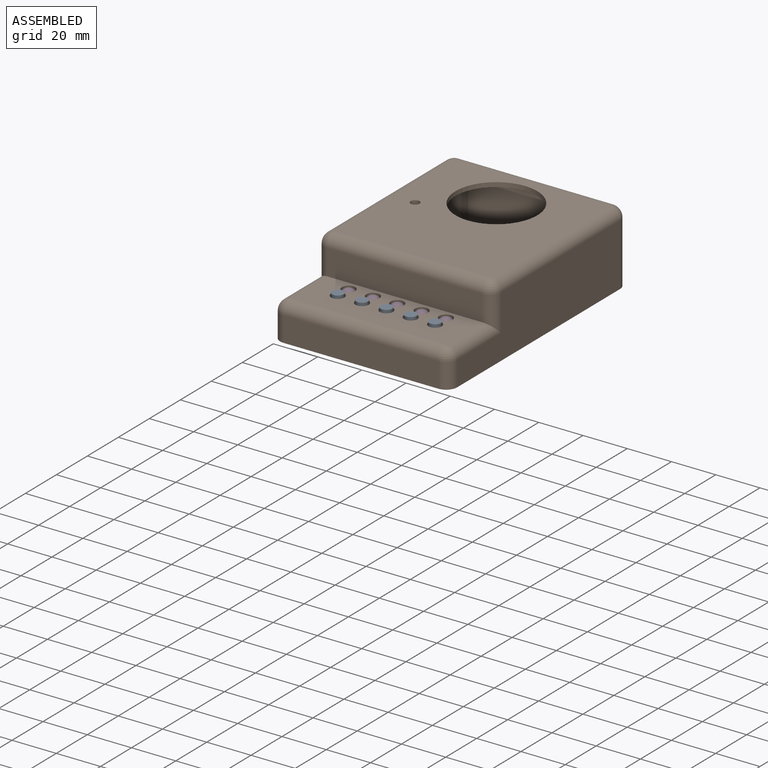
[diagram: assembled view]
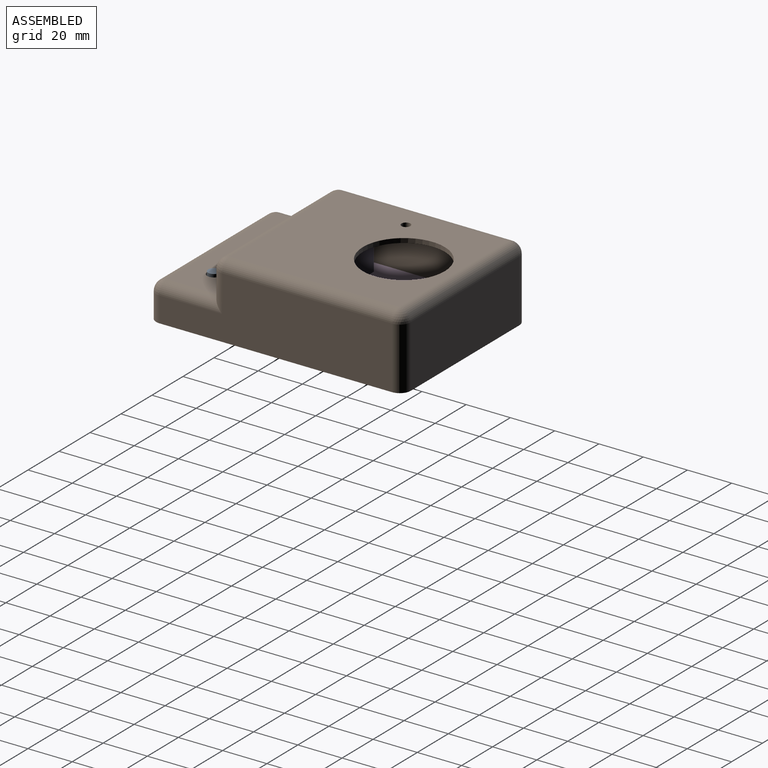
[diagram: assembled view, second angle]
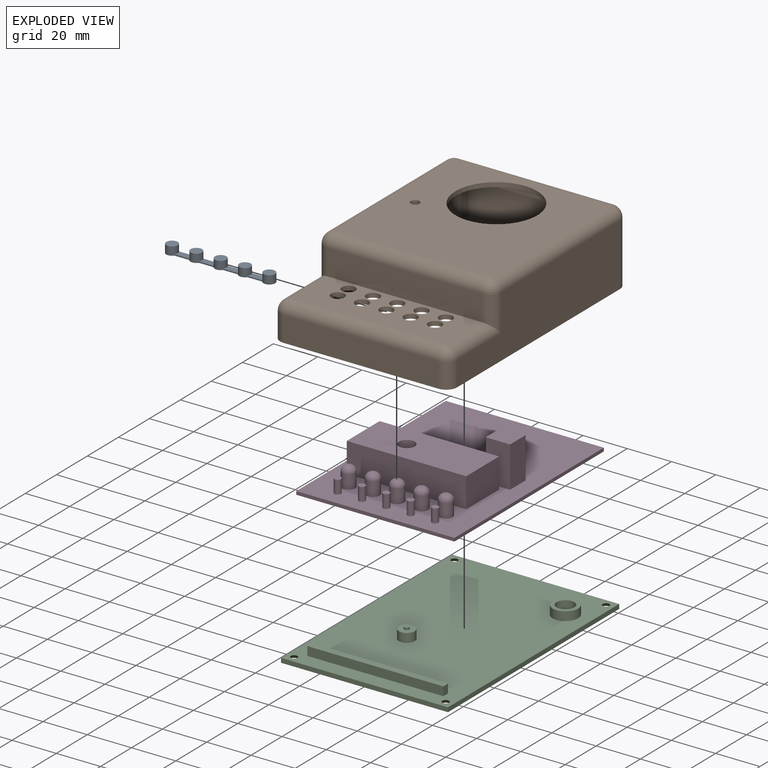
[diagram: exploded view]
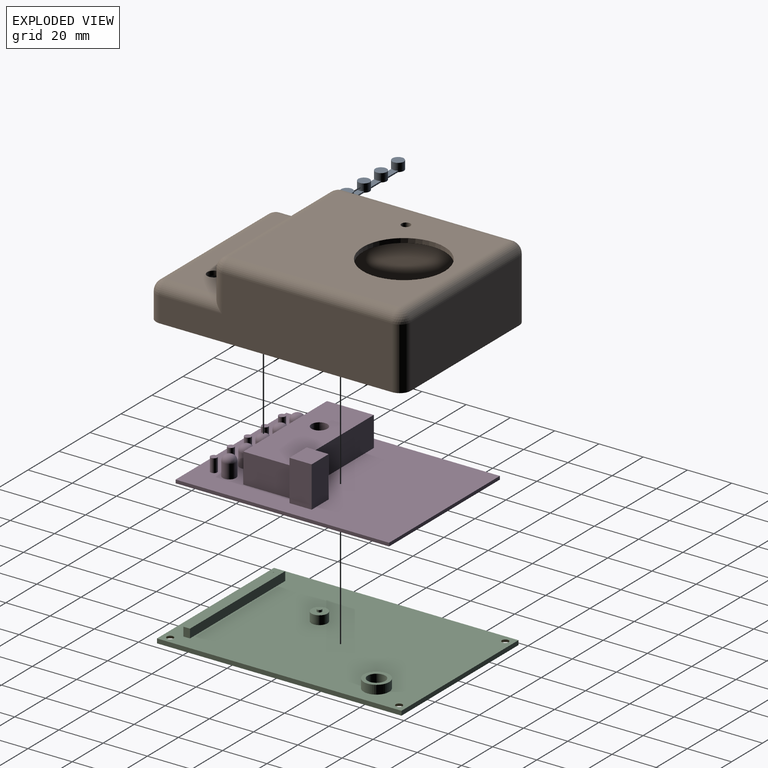
[diagram: exploded view, second angle]
ASSEMBLY  parts=4 mates=4
PART A: 23 faces, bbox 49.2x5.2x3.8 mm
  f0: plane 6.75x3mm, normal (0,0,1), area 18.3mm2, adj f7,f8,f9,f10
  f1: plane 6.75x3mm, normal (0,0,1), area 18.3mm2, adj f5,f6,f10,f11
  f2: plane 6.75x3mm, normal (0,0,1), area 18.3mm2, adj f4,f5,f12,f13
  f3: plane 6.75x3mm, normal (0,0,1), area 18.3mm2, adj f13,f14,f15,f16
  f4: plane 6.75x0.58mm, normal (0,-1,0), area 3.9mm2, adj f2,f5,f13,f17
  f5: cylinder r=2.6mm len=5.2mm, axis (0,0,-1), area 58mm2, adj f1,f2,f4,f6,f11,f12,f17,f20
  f6: plane 6.75x0.58mm, normal (0,-1,0), area 3.9mm2, adj f1,f5,f10,f17
  f7: plane 6.75x0.58mm, normal (0,-1,0), area 3.9mm2, adj f0,f8,f10,f17
  f8: cylinder r=2.6mm len=5.2mm, axis (0,0,-1), area 59.9mm2, adj f0,f7,f9,f17,f22
  f9: plane 6.75x0.58mm, normal (0,1,0), area 3.9mm2, adj f0,f8,f10,f17
  f10: cylinder r=2.6mm len=5.2mm, axis (0,0,-1), area 58mm2, adj f0,f1,f6,f7,f9,f11,f17,f21
  f11: plane 6.75x0.58mm, normal (0,1,0), area 3.9mm2, adj f1,f5,f10,f17
  f12: plane 6.75x0.58mm, normal (0,1,0), area 3.9mm2, adj f2,f5,f13,f17
  f13: cylinder r=2.6mm len=5.2mm, axis (0,0,-1), area 58mm2, adj f2,f3,f4,f12,f14,f16,f17,f19
  f14: plane 6.75x0.58mm, normal (0,1,0), area 3.9mm2, adj f3,f13,f15,f17
  f15: cylinder r=2.6mm len=5.2mm, axis (0,0,-1), area 59.9mm2, adj f3,f14,f16,f17,f18
  f16: plane 6.75x0.58mm, normal (0,-1,0), area 3.9mm2, adj f3,f13,f15,f17
  f17: plane 49.2x5.2mm, normal (0,0,-1), area 179.4mm2, adj f4,f5,f6,f7,f8,f9,f10,f11
  f18: plane 5.2x5.2mm, normal (0,0,1), area 21.2mm2, adj f15
  f19: plane 5.2x5.2mm, normal (0,0,1), area 21.2mm2, adj f13
  f20: plane 5.2x5.2mm, normal (0,0,1), area 21.2mm2, adj f5
  f21: plane 5.2x5.2mm, normal (0,0,1), area 21.2mm2, adj f10
  f22: plane 5.2x5.2mm, normal (0,0,1), area 21.2mm2, adj f8
PART B: 110 faces, bbox 80x115.1x33 mm
  f0: plane 72.77x68mm, normal (0,0,-1), area 3416.2mm2, adj f21,f28,f34,f55,f56,f57,f58,f61
  f1: plane 76x9.33mm, normal (0,1,0), area 605.7mm2, adj f2,f3,f10,f38,f41,f45,f47,f101
  f2: plane 111.1x26mm, normal (-1,0,0), area 2107.3mm2, adj f1,f4,f10,f32,f33,f44,f45,f77
  f3: plane 111.1x26mm, normal (1,0,0), area 1968.3mm2, adj f1,f4,f10,f14,f26,f27,f38,f39
  f4: plane 76x26mm, normal (0,-1,0), area 1630.9mm2, adj f2,f3,f10,f26,f29,f32,f35,f79
  f5: plane 70x11.67mm, normal (0,-1,0), area 816.9mm2, adj f6,f72,f87,f95
  f6: plane 70x23.33mm, normal (0,0,1), area 1350.4mm2, adj f5,f16,f17,f18,f19,f20,f64,f65
  f7: plane 70x11.33mm, normal (0,-1,0), area 793.1mm2, adj f10,f88,f91,f92
  f8: plane 66x23.33mm, normal (0,0,-1), area 1251.6mm2, adj f9,f16,f17,f18,f19,f20,f40,f46
  f9: plane 66x11.67mm, normal (0,1,0), area 770.2mm2, adj f8,f78,f81,f84
  f10: plane 115.1x80mm, normal (0,0,-1), area 742.9mm2, adj f1,f2,f3,f4,f7,f11,f13,f15
  f11: plane 70x28mm, normal (0,1,0), area 1960mm2, adj f10,f71,f97,f99
  f12: plane 76.77x70mm, normal (0,0,1), area 4286.1mm2, adj f21,f69,f70,f71,f72,f73
  f13: plane 105.1x28mm, normal (1,0,0), area 2470.5mm2, adj f10,f70,f91,f94,f95,f99
  f14: cylinder r=7.5mm len=15mm, axis (1,0,0), area 94.2mm2, adj f3,f15,f73,f75
  f15: plane 105.1x28mm, normal (-1,0,0), area 2307.8mm2, adj f10,f14,f73,f87,f88,f89,f97
  f16: cylinder r=3mm len=6mm, axis (0,0,1), area 37.7mm2, adj f6,f8
  f17: cylinder r=3mm len=6mm, axis (0,0,1), area 37.7mm2, adj f6,f8
  f18: cylinder r=3mm len=6mm, axis (0,0,1), area 37.7mm2, adj f6,f8
  f19: cylinder r=3mm len=6mm, axis (0,0,1), area 37.7mm2, adj f6,f8
  f20: cylinder r=3mm len=6mm, axis (0,0,1), area 37.7mm2, adj f6,f8
  f21: cylinder r=18.5mm len=37mm, axis (0,0,1), area 232.5mm2, adj f0,f12,f102
  f22: plane 7.5x7.5mm, normal (0,0,-1), area 36.1mm2, adj f23,f24
  f23: cylinder r=3.75mm len=18.43mm, axis (0,0,1), area 411.4mm2, adj f22,f102,f103,f104,f105
  f24: cylinder r=1.6mm len=23.3mm, axis (0,0,1), area 234.2mm2, adj f22,f25
  f25: plane 3.2x3.2mm, normal (0,0,-1), area 8mm2, adj f24
  f26: plane 7.3x7.25mm, normal (0,0,-1), area 20.1mm2, adj f3,f4,f27,f28,f29,f108
  f27: plane 28.65x3.78mm, normal (0,-1,0), area 103.6mm2, adj f3,f26,f28,f74
  f28: cylinder r=3.5mm len=28.8mm, axis (0,0,1), area 157.3mm2, adj f0,f26,f27,f29,f74,f79
  f29: plane 28.65x3.8mm, normal (1,0,0), area 104.1mm2, adj f4,f26,f28,f79
  f30: cylinder r=1.6mm len=27.3mm, axis (0,0,1), area 274.4mm2, adj f31,f108
  f31: plane 3.2x3.2mm, normal (0,0,-1), area 8mm2, adj f30
  f32: plane 7.3x7.25mm, normal (0,0,-1), area 20.1mm2, adj f2,f4,f33,f34,f35,f109
  f33: plane 28.68x3.91mm, normal (0,-1,0), area 107.2mm2, adj f2,f32,f34,f77
  f34: cylinder r=3.5mm len=28.8mm, axis (0,0,1), area 156mm2, adj f0,f32,f33,f35,f77,f79
  f35: plane 28.63x3.72mm, normal (-1,0,0), area 101.7mm2, adj f4,f32,f34,f79
  f36: cylinder r=1.6mm len=27.3mm, axis (0,0,1), area 274.4mm2, adj f37,f109
  f37: plane 3.2x3.2mm, normal (0,0,-1), area 8mm2, adj f36
  f38: plane 7.3x7.25mm, normal (0,0,-1), area 20.1mm2, adj f1,f3,f39,f40,f41,f106
  f39: plane 11.97x3.75mm, normal (0,1,0), area 40.2mm2, adj f3,f38,f40,f83
  f40: cylinder r=3.5mm len=12.13mm, axis (0,0,1), area 66.5mm2, adj f8,f38,f39,f41,f83,f101
  f41: plane 11.98x3.8mm, normal (1,0,0), area 40.8mm2, adj f1,f38,f40,f101
  f42: cylinder r=1.6mm len=10.63mm, axis (0,0,1), area 106.9mm2, adj f43,f106
  f43: plane 3.2x3.2mm, normal (0,0,-1), area 8mm2, adj f42
  f44: plane 11.97x3.75mm, normal (0,1,0), area 40.2mm2, adj f2,f45,f46,f80
  f45: plane 7.3x7.25mm, normal (0,0,-1), area 20.1mm2, adj f1,f2,f44,f46,f47,f107
  f46: cylinder r=3.5mm len=12.13mm, axis (0,0,1), area 66.5mm2, adj f8,f44,f45,f47,f80,f101
  f47: plane 11.98x3.8mm, normal (-1,0,0), area 40.8mm2, adj f1,f45,f46,f101
  f48: cylinder r=1.6mm len=10.63mm, axis (0,0,1), area 106.9mm2, adj f49,f107
  f49: plane 3.2x3.2mm, normal (0,0,-1), area 8mm2, adj f48
  f50: cylinder r=21.9mm len=7mm, axis (0,0,1), area 6.4mm2, adj f51,f53,f54,f79
  f51: plane 1.38x0.91mm, normal (1,0,0), area 1mm2, adj f50,f52,f54,f79
  f52: plane 7x0.42mm, normal (0,1,0), area 2.9mm2, adj f51,f53,f54,f79
  f53: plane 1.38x0.91mm, normal (-1,0,0), area 1mm2, adj f50,f52,f54,f79
  f54: plane 7x1.38mm, normal (0,0,-1), area 8.4mm2, adj f50,f51,f52,f53
  f55: plane 7x1mm, normal (0,-1,0), area 7mm2, adj f0,f56,f58,f59
  f56: plane 1.38x1mm, normal (1,0,0), area 1.4mm2, adj f0,f55,f57,f59
  f57: cylinder r=21.9mm len=7mm, axis (0,0,1), area 7mm2, adj f0,f56,f58,f59
  f58: plane 1.38x1mm, normal (-1,0,0), area 1.4mm2, adj f0,f55,f57,f59
  f59: plane 7x1.38mm, normal (0,0,-1), area 8.4mm2, adj f55,f56,f57,f58
  f60: cylinder r=3mm len=6mm, axis (0,0,1), area 18.8mm2, adj f62,f63
  f61: cylinder r=4mm len=8mm, axis (0,0,1), area 25.1mm2, adj f0,f62
  f62: plane 8x8mm, normal (0,0,-1), area 22mm2, adj f60,f61
  f63: plane 6x6mm, normal (0,0,-1), area 15.7mm2, adj f60,f69
  f64: cylinder r=3mm len=6mm, axis (0,0,1), area 37.7mm2, adj f6,f8
  f65: cylinder r=3mm len=6mm, axis (0,0,1), area 37.7mm2, adj f6,f8
  f66: cylinder r=3mm len=6mm, axis (0,0,1), area 37.7mm2, adj f6,f8
  f67: cylinder r=3mm len=6mm, axis (0,0,1), area 37.7mm2, adj f6,f8
  f68: cylinder r=3mm len=6mm, axis (0,0,1), area 37.7mm2, adj f6,f8
  f69: cylinder r=2mm len=4mm, axis (0,0,1), area 25.1mm2, adj f12,f63
  f70: cylinder r=5mm len=76.77mm, axis (0,-1,0), area 603mm2, adj f12,f13,f96,f100
  f71: cylinder r=5mm len=70mm, axis (1,0,0), area 549.8mm2, adj f11,f12,f98,f100
  f72: cylinder r=5mm len=70mm, axis (1,0,0), area 549.8mm2, adj f5,f12,f86,f96
  f73: cylinder r=5mm len=76.77mm, axis (0,-1,0), area 588.7mm2, adj f12,f14,f15,f86,f98
  f74: cylinder r=5mm len=56.47mm, axis (0,1,0), area 441.8mm2, adj f0,f3,f27,f28,f75
  f75: bspline ~14.89x5.38mm, area 65.9mm2, adj f0,f14,f74,f76
  f76: cylinder r=5mm len=5mm, axis (0,1,0), area 7.6mm2, adj f0,f3,f75,f85
  f77: cylinder r=5mm len=70.7mm, axis (0,1,0), area 553.6mm2, adj f0,f2,f33,f34,f82,f105
  f78: cylinder r=5mm len=66mm, axis (-1,0,0), area 518.4mm2, adj f0,f9,f82,f85
  f79: cylinder r=5mm len=61.92mm, axis (-1,0,0), area 473mm2, adj f0,f4,f28,f29,f34,f35,f50,f51
  f80: cylinder r=5mm len=26.26mm, axis (0,1,0), area 179.6mm2, adj f2,f8,f44,f46,f81
  f81: cylinder r=5mm len=16.67mm, axis (0,0,1), area 105.9mm2, adj f2,f9,f80,f82
  f82: sphere r=5mm, area 39.3mm2, adj f77,f78,f81
  f83: cylinder r=5mm len=26.26mm, axis (0,1,0), area 179.6mm2, adj f3,f8,f39,f40,f84
  f84: cylinder r=5mm len=16.67mm, axis (0,0,1), area 105.9mm2, adj f3,f9,f83,f85
  f85: sphere r=5mm, area 39.3mm2, adj f76,f78,f84
  f86: sphere r=5mm, area 39.3mm2, adj f72,f73,f87
  f87: cylinder r=5mm len=16.67mm, axis (0,0,-1), area 105.9mm2, adj f5,f15,f86,f89
  f88: cylinder r=5mm len=11.33mm, axis (0,0,-1), area 89mm2, adj f7,f10,f15,f90
  f89: cylinder r=5mm len=28.33mm, axis (0,-1,0), area 197.5mm2, adj f6,f15,f87,f90
  f90: sphere r=5mm, area 39.3mm2, adj f88,f89,f92
  f91: cylinder r=5mm len=11.33mm, axis (0,0,-1), area 89mm2, adj f7,f10,f13,f93
  f92: cylinder r=5mm len=70mm, axis (1,0,0), area 549.8mm2, adj f6,f7,f90,f93
  f93: sphere r=5mm, area 39.3mm2, adj f91,f92,f94
  f94: cylinder r=5mm len=28.33mm, axis (0,-1,0), area 197.5mm2, adj f6,f13,f93,f95
  f95: cylinder r=5mm len=16.67mm, axis (0,0,-1), area 105.9mm2, adj f5,f13,f94,f96
  f96: sphere r=5mm, area 39.3mm2, adj f70,f72,f95
  f97: cylinder r=5mm len=28mm, axis (0,0,1), area 219.9mm2, adj f10,f11,f15,f98
  f98: sphere r=5mm, area 39.3mm2, adj f71,f73,f97
  f99: cylinder r=5mm len=28mm, axis (0,0,1), area 219.9mm2, adj f10,f11,f13,f100
  f100: sphere r=5mm, area 39.3mm2, adj f70,f71,f99
  f101: cylinder r=5mm len=61.92mm, axis (-1,0,0), area 483.3mm2, adj f1,f8,f40,f41,f46,f47
  f102: bspline ~6.52x6mm, area 32.7mm2, adj f21,f23,f103,f104
  f103: torus R=9.75mm, axis (0,0,1), area 121.8mm2, adj f0,f23,f102,f105
  f104: torus R=9.75mm, axis (0,0,1), area 95.7mm2, adj f0,f23,f102,f105
  f105: bspline ~15.78x6.42mm, area 61.1mm2, adj f23,f77,f103,f104
  f106: cone r=1.6mm half-angle=45deg, axis (0,0,-1), area 31.3mm2, adj f38,f42
  f107: cone r=1.6mm half-angle=45deg, axis (0,0,-1), area 31.3mm2, adj f45,f48
  f108: cone r=1.6mm half-angle=45deg, axis (0,0,-1), area 31.3mm2, adj f26,f30
  f109: cone r=1.6mm half-angle=45deg, axis (0,0,-1), area 31.3mm2, adj f32,f36
PART C: 27 faces, bbox 75.5x110.5x7 mm
  f0: plane 110.5x75.5mm, normal (0,0,-1), area 8178.3mm2, adj f5,f6,f7,f8,f23,f24,f25,f26
  f1: plane 3.5x3.5mm, normal (0,0,-1), area 2.6mm2, adj f5,f8,f24
  f2: plane 3.5x3.5mm, normal (0,0,-1), area 2.6mm2, adj f6,f7,f25
  f3: plane 3.5x3.5mm, normal (0,0,-1), area 2.6mm2, adj f7,f8,f26
  f4: plane 110.5x75.5mm, normal (0,0,1), area 7985.4mm2, adj f5,f6,f7,f8,f10,f11,f12,f13
  f5: plane 75.5x2mm, normal (0,-1,0), area 151mm2, adj f0,f1,f4,f6,f8,f9
  f6: plane 110.5x2mm, normal (1,0,0), area 221mm2, adj f0,f2,f4,f5,f7,f9
  f7: plane 75.5x2mm, normal (0,1,0), area 151mm2, adj f0,f2,f3,f4,f6,f8
  f8: plane 110.5x2mm, normal (-1,0,0), area 221mm2, adj f0,f1,f3,f4,f5,f7
  f9: plane 3.5x3.5mm, normal (0,0,-1), area 2.6mm2, adj f5,f6,f23
  f10: plane 4x3mm, normal (1,0,0), area 12mm2, adj f4,f11,f13,f14
  f11: plane 61.5x4mm, normal (0,1,0), area 246mm2, adj f4,f10,f12,f14
  f12: plane 4x3mm, normal (-1,0,0), area 12mm2, adj f4,f11,f13,f14
  f13: plane 61.5x4mm, normal (0,-1,0), area 246mm2, adj f4,f10,f12,f14
  f14: plane 61.5x3mm, normal (0,0,1), area 184.5mm2, adj f10,f11,f12,f13
  f15: cylinder r=5.75mm len=11.5mm, axis (0,0,1), area 144.5mm2, adj f4,f17
  f16: cylinder r=4mm len=8mm, axis (0,0,1), area 100.5mm2, adj f17,f18
  f17: plane 11.5x11.5mm, normal (0,0,1), area 53.6mm2, adj f15,f16
  f18: plane 8x8mm, normal (0,0,1), area 50.3mm2, adj f16
  f19: cylinder r=3.6mm len=7.2mm, axis (0,0,1), area 90.5mm2, adj f4,f20
  f20: plane 7.2x7.2mm, normal (0,0,1), area 36.9mm2, adj f19,f21
  f21: cylinder r=1.1mm len=2.2mm, axis (0,0,1), area 6.9mm2, adj f20,f22
  f22: plane 2.2x2.2mm, normal (0,0,1), area 3.8mm2, adj f21
  f23: cone r=3.5mm half-angle=45deg, axis (0,0,-1), area 44.4mm2, adj f0,f4,f9
  f24: cone r=1.5mm half-angle=45deg, axis (0,0,-1), area 44.4mm2, adj f0,f1,f4
  f25: cone r=1.5mm half-angle=45deg, axis (0,0,-1), area 44.4mm2, adj f0,f2,f4
  f26: cone r=3.5mm half-angle=45deg, axis (0,0,-1), area 44.4mm2, adj f0,f3,f4
PART D: 43 faces, bbox 71.5x96.5x20 mm
  f0: plane 54x13.5mm, normal (0,1,0), area 729mm2, adj f1,f4,f5,f6
  f1: plane 21.2x13.5mm, normal (-1,0,0), area 286.2mm2, adj f0,f2,f5,f6
  f2: plane 54x13.5mm, normal (0,-1,0), area 729mm2, adj f1,f4,f5,f6
  f3: cylinder r=3.6mm len=13.5mm, axis (0,0,1), area 305.4mm2, adj f5,f37
  f4: plane 21.2x13.5mm, normal (1,0,0), area 286.2mm2, adj f0,f2,f5,f6
  f5: plane 54x21.2mm, normal (0,0,1), area 1104.1mm2, adj f0,f1,f2,f3,f4
  f6: plane 96.5x71.5mm, normal (0,0,1), area 5468.2mm2, adj f0,f1,f2,f4,f7,f8,f9,f10
  f7: plane 96.5x1.5mm, normal (-1,0,0), area 144.8mm2, adj f6,f8,f10,f36
  f8: plane 71.5x1.5mm, normal (0,1,0), area 107.2mm2, adj f6,f7,f9,f36
  f9: plane 96.5x1.5mm, normal (1,0,0), area 144.8mm2, adj f6,f8,f10,f36
  f10: plane 71.5x1.5mm, normal (0,-1,0), area 107.2mm2, adj f6,f7,f9,f36
  f11: plane 11x10mm, normal (0,0,1), area 110mm2, adj f12,f13,f14,f15
  f12: plane 18.5x11mm, normal (0,1,0), area 203.5mm2, adj f6,f11,f13,f15
  f13: plane 18.5x10mm, normal (1,0,0), area 185mm2, adj f6,f11,f12,f14
  f14: plane 18.5x11mm, normal (0,-1,0), area 203.5mm2, adj f6,f11,f13,f15
  f15: plane 18.5x10mm, normal (-1,0,0), area 185mm2, adj f6,f11,f12,f14
  f16: plane 1x1mm, normal (0,0,1), area 0.8mm2, adj f38
  f17: cylinder r=3mm len=6.33mm, axis (0,0,1), area 119.3mm2, adj f6,f38
  f18: plane 1x1mm, normal (0,0,1), area 0.8mm2, adj f39
  f19: cylinder r=3mm len=6.33mm, axis (0,0,1), area 119.3mm2, adj f6,f39
  f20: plane 1x1mm, normal (0,0,1), area 0.8mm2, adj f40
  f21: cylinder r=3mm len=6.33mm, axis (0,0,1), area 119.3mm2, adj f6,f40
  f22: plane 1x1mm, normal (0,0,1), area 0.8mm2, adj f41
  f23: cylinder r=3mm len=6.33mm, axis (0,0,1), area 119.3mm2, adj f6,f41
  f24: plane 1x1mm, normal (0,0,1), area 0.8mm2, adj f42
  f25: cylinder r=3mm len=6.33mm, axis (0,0,1), area 119.3mm2, adj f6,f42
  f26: plane 3x3mm, normal (0,0,1), area 7.1mm2, adj f27
  f27: cylinder r=1.5mm len=6.05mm, axis (0,0,-1), area 57mm2, adj f6,f26
  f28: plane 3x3mm, normal (0,0,1), area 7.1mm2, adj f29
  f29: cylinder r=1.5mm len=6.05mm, axis (0,0,-1), area 57mm2, adj f6,f28
  f30: plane 3x3mm, normal (0,0,1), area 7.1mm2, adj f31
  f31: cylinder r=1.5mm len=6.05mm, axis (0,0,-1), area 57mm2, adj f6,f30
  f32: plane 3x3mm, normal (0,0,1), area 7.1mm2, adj f33
  f33: cylinder r=1.5mm len=6.05mm, axis (0,0,-1), area 57mm2, adj f6,f32
  f34: plane 3x3mm, normal (0,0,1), area 7.1mm2, adj f35
  f35: cylinder r=1.5mm len=6.05mm, axis (0,0,-1), area 57mm2, adj f6,f34
  f36: plane 96.5x71.5mm, normal (0,0,-1), area 6899.8mm2, adj f7,f8,f9,f10
  f37: plane 7.2x7.2mm, normal (0,0,1), area 40.7mm2, adj f3
  f38: torus R=0.5mm, axis (0,0,1), area 51.6mm2, adj f16,f17
  f39: torus R=0.5mm, axis (0,0,1), area 51.6mm2, adj f18,f19
  f40: torus R=0.5mm, axis (0,0,1), area 51.6mm2, adj f20,f21
  f41: torus R=0.5mm, axis (0,0,1), area 51.6mm2, adj f22,f23
  f42: torus R=0.5mm, axis (0,0,1), area 51.6mm2, adj f24,f25
PLACE A t=(3.06,21.66,3.33)mm
PLACE B t=(3.06,21.66,3.13)mm
PLACE C t=(3.06,21.66,3.33)mm fixed
PLACE D t=(3.06,21.66,3.33)mm
MATE slider C.f26 <-> B.f108  axis (0,0,1) through (-31.19,75.91,-0.67)mm
MATE slider D.f3 <-> C.f19  axis (0,0,1) through (-6.19,9.41,4.83)mm
MATE slider A.f15 <-> D.f35  axis (0,0,-1) through (-19.19,-16.59,10.88)mm
MATE slider A.f15 <-> B.f68  axis (0,0,1) through (-19.19,-16.59,14.66)mm
